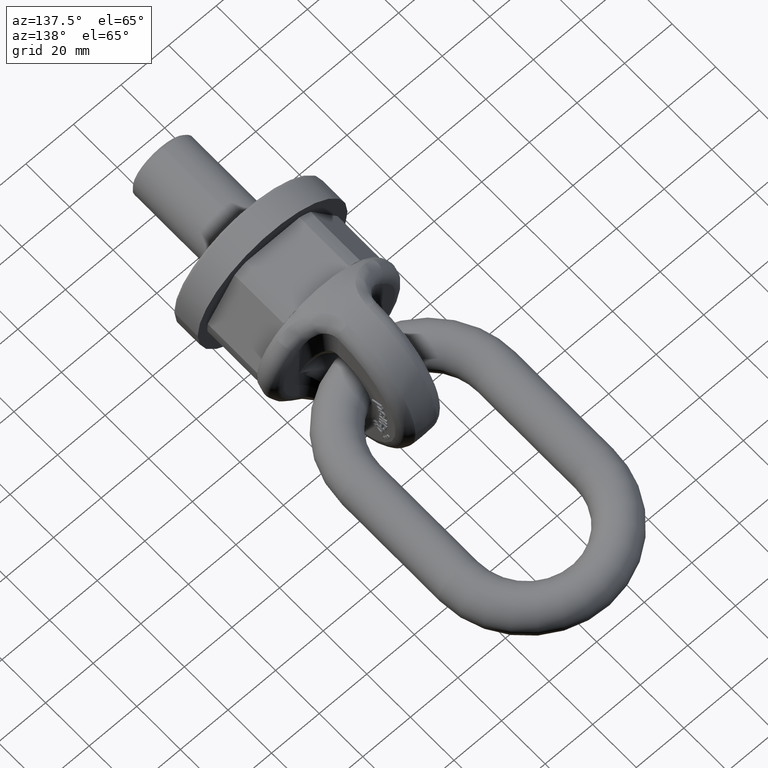
[diagram: clean part render]
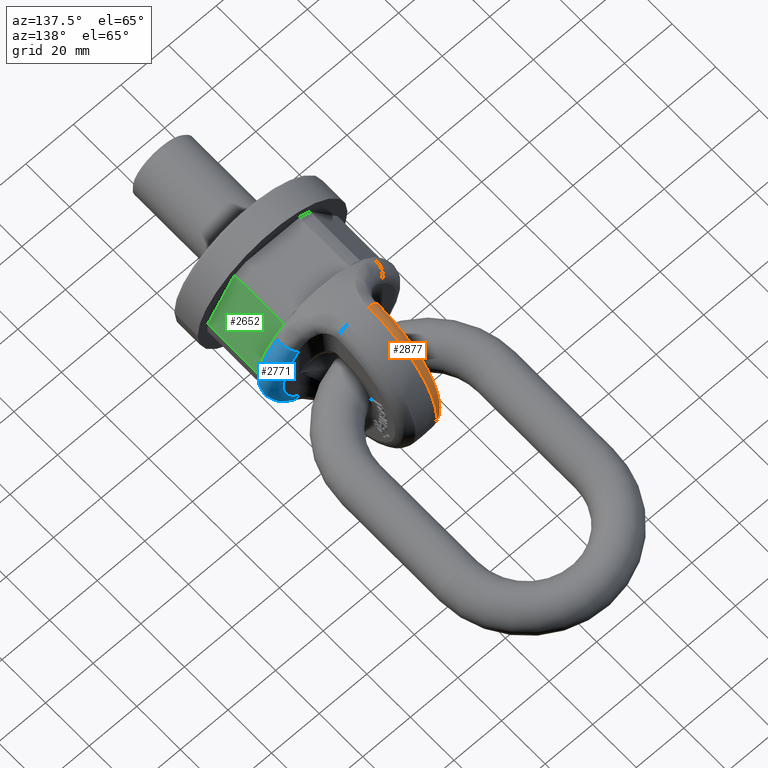
[diagram: same view with three faces highlighted in distinct colors, each labeled with its STEP entity id]
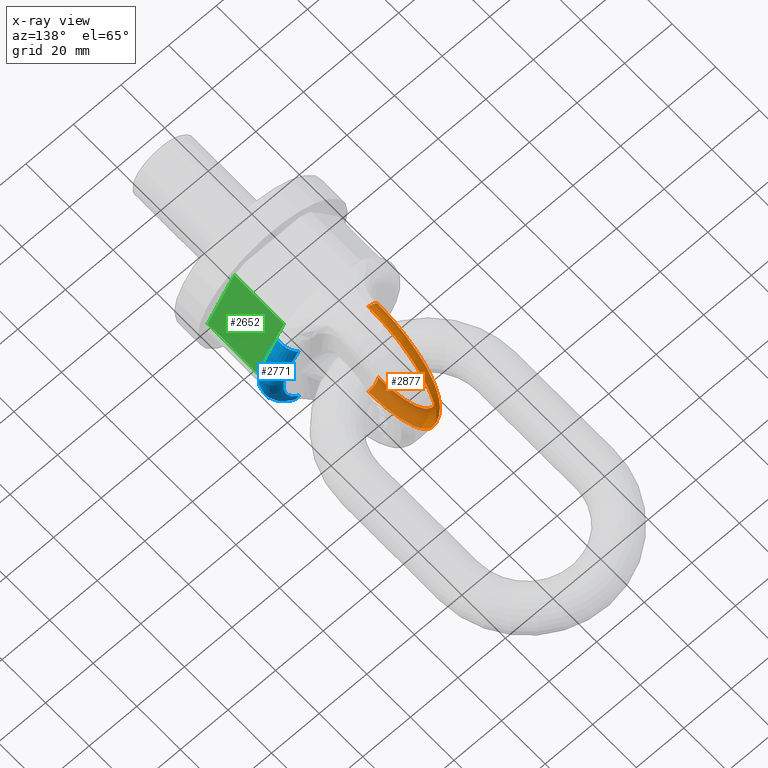
[diagram: x-ray of the same camera — body ghosted, the three highlighted faces saturated]
A machine part, auxiliary view with three faces highlighted in distinct colors.
The next image is the same camera in x-ray (body ghosted, the three faces saturated) — at least one of them is partly hidden behind the body in this view.
Their STEP definitions:

[orange] entity #2877 — the highlighted toroidal blend (fillet) surface has major radius 26.4858 mm and minor (blend) radius 4.75 mm.
#1801=TOROIDAL_SURFACE('',#5794,26.4858452762981,4.75);
#2013=FACE_OUTER_BOUND('',#3336,.T.);
#2877=ADVANCED_FACE('',(#2013),#1801,.T.);
#3336=EDGE_LOOP('',(#4509,#4510,#4511,#4512));
#4509=ORIENTED_EDGE('',*,*,#5525,.T.);
#4510=ORIENTED_EDGE('',*,*,#5068,.F.);
#4511=ORIENTED_EDGE('',*,*,#5528,.F.);
#4512=ORIENTED_EDGE('',*,*,#5296,.F.);
#4655=VERTEX_POINT('',#7027);
#4656=VERTEX_POINT('',#7029);
#4789=VERTEX_POINT('',#8375);
#4792=VERTEX_POINT('',#8380);
#5068=EDGE_CURVE('',#4655,#4656,#5562,.T.);
#5296=EDGE_CURVE('',#4792,#4789,#5586,.T.);
#5525=EDGE_CURVE('',#4792,#4656,#5591,.T.);
#5528=EDGE_CURVE('',#4789,#4655,#5594,.T.);
#5562=CIRCLE('',#5653,31.188939297323);
#5586=CIRCLE('',#5733,26.4858452762981);
#5591=CIRCLE('',#5790,4.75);
#5594=CIRCLE('',#5793,4.75);
#5653=AXIS2_PLACEMENT_3D('',#7028,#5969,#5970);
#5733=AXIS2_PLACEMENT_3D('',#8381,#6263,#6264);
#5790=AXIS2_PLACEMENT_3D('',#9570,#6531,#6532);
#5793=AXIS2_PLACEMENT_3D('',#9609,#6537,#6538);
#5794=AXIS2_PLACEMENT_3D('',#9610,#6539,#6540);
#5969=DIRECTION('',(1.,3.03576608295941E-16,2.34291072916505E-15));
#5970=DIRECTION('',(3.05909060481944E-16,-1.,6.91604647772953E-31));
#6263=DIRECTION('',(-1.,-3.03576608295941E-16,-2.34291072916505E-15));
#6264=DIRECTION('',(-3.27481237219413E-16,1.,-6.98068242611952E-31));
#6531=DIRECTION('',(0.,1.,0.));
#6532=DIRECTION('',(2.37383212502089E-15,0.,-1.));
#6537=DIRECTION('',(0.,-1.,0.));
#6538=DIRECTION('',(-2.37383212502089E-15,0.,1.));
#6539=DIRECTION('',(-1.,-3.03576608295941E-16,-2.34291072916505E-15));
#6540=DIRECTION('',(-3.05449685560845E-16,1.,-6.90566084776479E-31));
#7027=CARTESIAN_POINT('',(-4.41588785046721,50.5,-31.188939297323));
#7028=CARTESIAN_POINT('',(-4.41588785046729,50.5,-1.03460310236494E-14));
#7029=CARTESIAN_POINT('',(-4.41588785046736,50.5,31.1889392973229));
#8375=CARTESIAN_POINT('',(-8.49999999999993,50.5,-26.4858452762981));
#8380=CARTESIAN_POINT('',(-8.50000000000006,50.5,26.485845276298));
#8381=CARTESIAN_POINT('',(-8.5,50.5,-1.99147411979029E-14));
#9570=CARTESIAN_POINT('',(-3.75000000000006,50.5,26.4858452762981));
#9609=CARTESIAN_POINT('',(-3.74999999999993,50.5,-26.4858452762981));
#9610=CARTESIAN_POINT('',(-3.75,50.5,-8.78591523436892E-15));

[blue] entity #2771 — the highlighted toroidal blend (fillet) surface has major radius 23.5788 mm and minor (blend) radius 4.75 mm.
#1799=TOROIDAL_SURFACE('',#5724,23.5787789097733,4.75);
#1915=FACE_OUTER_BOUND('',#3215,.T.);
#2771=ADVANCED_FACE('',(#1915),#1799,.T.);
#3215=EDGE_LOOP('',(#3976,#3977,#3978,#3979));
#3976=ORIENTED_EDGE('',*,*,#5263,.T.);
#3977=ORIENTED_EDGE('',*,*,#5081,.F.);
#3978=ORIENTED_EDGE('',*,*,#5265,.F.);
#3979=ORIENTED_EDGE('',*,*,#5077,.F.);
#4649=VERTEX_POINT('',#6971);
#4651=VERTEX_POINT('',#7003);
#4663=VERTEX_POINT('',#7071);
#4664=VERTEX_POINT('',#7073);
#5077=EDGE_CURVE('',#4663,#4664,#5566,.T.);
#5081=EDGE_CURVE('',#4649,#4651,#5568,.T.);
#5263=EDGE_CURVE('',#4663,#4651,#5576,.T.);
#5265=EDGE_CURVE('',#4664,#4649,#5578,.T.);
#5566=CIRCLE('',#5659,28.0180266928746);
#5568=CIRCLE('',#5662,23.5787789097733);
#5576=CIRCLE('',#5720,4.75);
#5578=CIRCLE('',#5723,4.75);
#5659=AXIS2_PLACEMENT_3D('',#7072,#5981,#5982);
#5662=AXIS2_PLACEMENT_3D('',#7089,#5987,#5988);
#5720=AXIS2_PLACEMENT_3D('',#8116,#6229,#6230);
#5723=AXIS2_PLACEMENT_3D('',#8137,#6235,#6236);
#5724=AXIS2_PLACEMENT_3D('',#8138,#6237,#6238);
#5981=DIRECTION('',(0.,-1.,0.));
#5982=DIRECTION('',(0.,0.,-1.));
#5987=DIRECTION('',(0.,1.,0.));
#5988=DIRECTION('',(0.,0.,1.));
#6229=DIRECTION('',(0.692948282349953,0.,0.720987293915953));
#6230=DIRECTION('',(0.720987293915953,0.,-0.692948282349954));
#6235=DIRECTION('',(-0.692948282349953,0.,0.720987293915953));
#6236=DIRECTION('',(0.720987293915953,0.,0.692948282349954));
#6237=DIRECTION('',(0.,1.,0.));
#6238=DIRECTION('',(0.,0.,1.));
#6971=CARTESIAN_POINT('',(17.,42.,16.3388743454367));
#7003=CARTESIAN_POINT('',(17.,42.,-16.3388743454367));
#7071=CARTESIAN_POINT('',(20.2006412461606,35.5601541134677,-19.4150434716626));
#7072=CARTESIAN_POINT('',(0.,35.5601541134677,0.));
#7073=CARTESIAN_POINT('',(20.2006412461606,35.5601541134677,19.4150434716626));
#7089=CARTESIAN_POINT('',(0.,42.,0.));
#8116=CARTESIAN_POINT('',(17.,37.25,-16.3388743454367));
#8137=CARTESIAN_POINT('',(17.,37.25,16.3388743454367));
#8138=CARTESIAN_POINT('',(0.,37.25,0.));

[green] entity #2652 — the highlighted planar face has unit normal (0.866, 0, 0.5).
#1810=FACE_OUTER_BOUND('',#3075,.T.);
#2041=LINE('',#6577,#2297);
#2059=LINE('',#6629,#2315);
#2060=LINE('',#6631,#2316);
#2061=LINE('',#6633,#2317);
#2297=VECTOR('',#5819,1.);
#2315=VECTOR('',#5863,1.);
#2316=VECTOR('',#5864,1.);
#2317=VECTOR('',#5865,1.);
#2652=ADVANCED_FACE('',(#1810),#2894,.T.);
#2894=PLANE('',#5621);
#3075=EDGE_LOOP('',(#3384,#3385,#3386,#3387));
#3384=ORIENTED_EDGE('',*,*,#4969,.F.);
#3385=ORIENTED_EDGE('',*,*,#4944,.T.);
#3386=ORIENTED_EDGE('',*,*,#4970,.F.);
#3387=ORIENTED_EDGE('',*,*,#4971,.T.);
#4546=VERTEX_POINT('',#6578);
#4547=VERTEX_POINT('',#6579);
#4567=VERTEX_POINT('',#6630);
#4568=VERTEX_POINT('',#6632);
#4944=EDGE_CURVE('',#4546,#4547,#2041,.T.);
#4969=EDGE_CURVE('',#4546,#4567,#2059,.T.);
#4970=EDGE_CURVE('',#4568,#4547,#2060,.T.);
#4971=EDGE_CURVE('',#4568,#4567,#2061,.T.);
#5621=AXIS2_PLACEMENT_3D('',#6634,#5866,#5867);
#5819=DIRECTION('',(0.499999999999999,2.11611763087961E-17,-0.866025403784439));
#5863=DIRECTION('',(-2.4492935982947E-17,1.,0.));
#5864=DIRECTION('',(2.4492935982947E-17,-1.,0.));
#5865=DIRECTION('',(-0.499999999999999,0.,0.866025403784439));
#5866=DIRECTION('',(0.866025403784439,0.,0.499999999999999));
#5867=DIRECTION('',(0.499999999999999,0.,-0.866025403784439));
#6577=CARTESIAN_POINT('',(29.5256350946109,11.3333333333333,-1.13990010960493));
#6578=CARTESIAN_POINT('',(16.0140729035823,11.3333333333333,22.2628120948833));
#6579=CARTESIAN_POINT('',(27.2871972856396,11.3333333333333,2.73718790511658));
#6629=CARTESIAN_POINT('',(16.0140729035823,-1.38055956908764E-16,22.2628120948833));
#6630=CARTESIAN_POINT('',(16.0140729035823,34.,22.2628120948833));
#6631=CARTESIAN_POINT('',(27.2871972856396,1.38055956908764E-16,2.73718790511658));
#6632=CARTESIAN_POINT('',(27.2871972856396,34.,2.73718790511658));
#6633=CARTESIAN_POINT('',(28.8675134594812,34.,0.));
#6634=CARTESIAN_POINT('',(28.8675134594812,34.,0.));